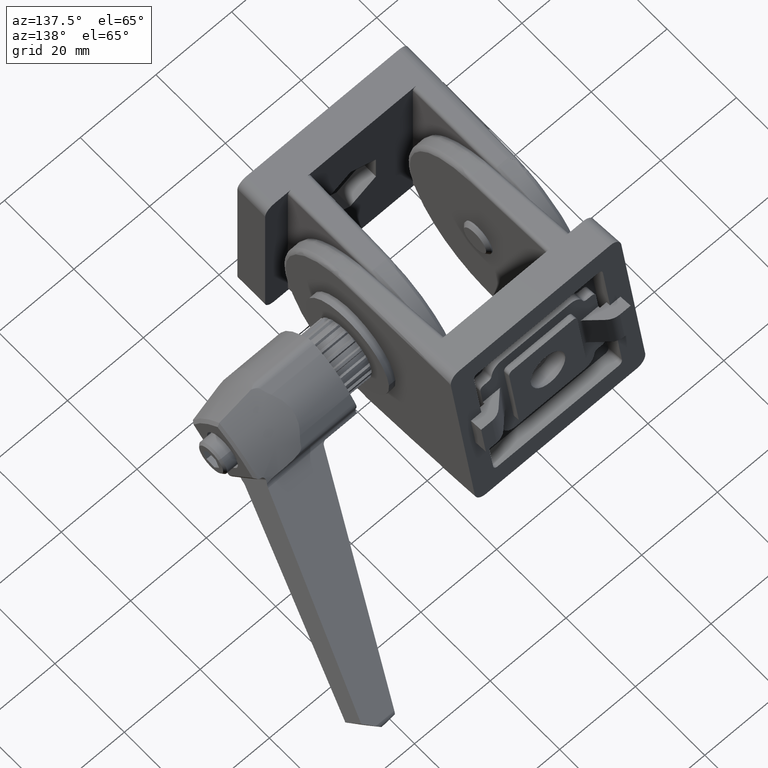
[diagram: clean part render]
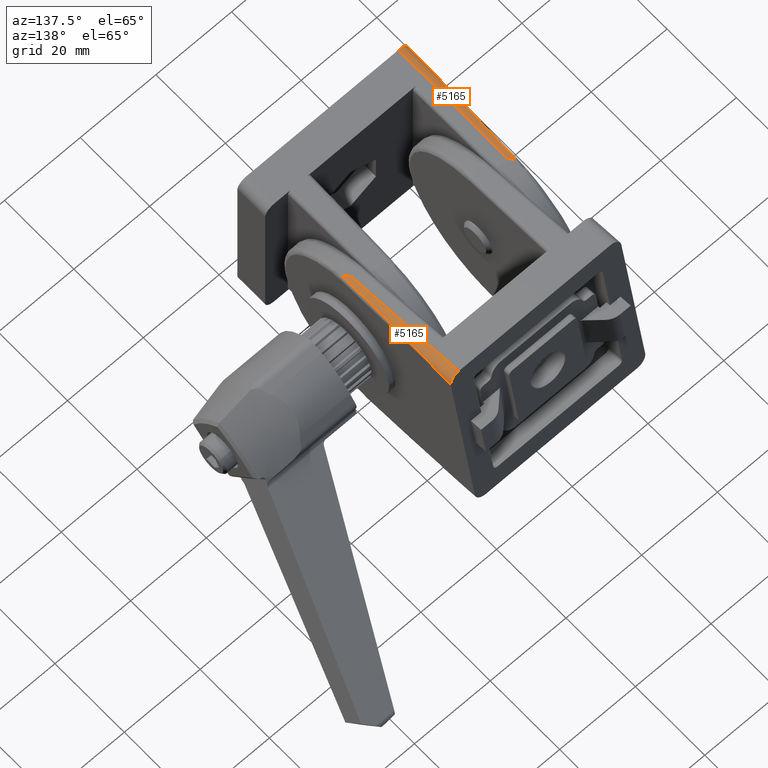
[diagram: same view with one multi-face feature highlighted, each face labeled with its STEP entity id]
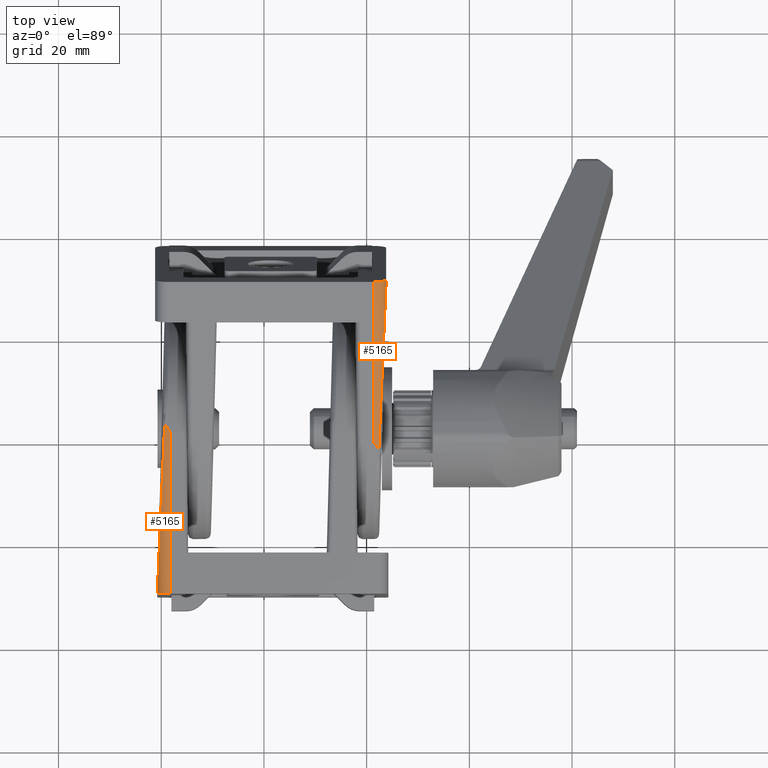
[diagram: same view with one multi-face feature highlighted, each face labeled with its STEP entity id]
A machine part, auxiliary view. The highlighted faces form ONE feature: a constant-radius fillet chain: 2 tangent blend faces with common blend radius 2.5 mm. The faces share edges in the B-rep.
A second angle (top view) of the same feature is appended — it is thin or edge-on in the first view.
Their STEP definitions:
[1] entity #5165 (Cylinder):
#104=LINE('',#7753,#535);
#535=VECTOR('',#6065,31.5);
#1188=CYLINDRICAL_SURFACE('',#5505,2.5);
#1326=FACE_OUTER_BOUND('',#1633,.T.);
#1633=EDGE_LOOP('',(#3759,#3760,#3761,#3762));
#1992=CIRCLE('',#5457,2.5);
#2219=B_SPLINE_CURVE_WITH_KNOTS('',3,(#8193,#8194,#8195,#8196),
 .UNSPECIFIED.,.F.,.F.,(4,4),(-2.9893868372348E-5,0.00184411947717255),
 .UNSPECIFIED.);
#2220=B_SPLINE_CURVE_WITH_KNOTS('',3,(#8197,#8198,#8199,#8200,#8201,#8202,
#8203,#8204,#8205,#8206,#8207,#8208,#8209),.UNSPECIFIED.,.F.,.F.,(4,3,3,
3,4),(5.14944531961086,5.43297500468938,5.70603487185707,5.97890863064195,
6.26180601664056),.UNSPECIFIED.);
#2277=VERTEX_POINT('',#7717);
#2278=VERTEX_POINT('',#7719);
#2293=VERTEX_POINT('',#7751);
#2348=VERTEX_POINT('',#8192);
#2805=EDGE_CURVE('',#2277,#2278,#1992,.T.);
#2822=EDGE_CURVE('',#2293,#2277,#104,.T.);
#2916=EDGE_CURVE('',#2293,#2348,#2219,.T.);
#2917=EDGE_CURVE('',#2348,#2278,#2220,.T.);
#3759=ORIENTED_EDGE('',*,*,#2916,.T.);
#3760=ORIENTED_EDGE('',*,*,#2917,.T.);
#3761=ORIENTED_EDGE('',*,*,#2805,.F.);
#3762=ORIENTED_EDGE('',*,*,#2822,.F.);
#5165=ADVANCED_FACE('',(#1326),#1188,.T.);
#5457=AXIS2_PLACEMENT_3D('',#7720,#6040,#6041);
#5505=AXIS2_PLACEMENT_3D('',#8191,#6211,#6212);
#6040=DIRECTION('center_axis',(0.,-1.,0.));
#6041=DIRECTION('ref_axis',(0.,0.,-1.));
#6065=DIRECTION('',(0.,-1.,0.));
#6211=DIRECTION('center_axis',(0.,-1.,0.));
#6212=DIRECTION('ref_axis',(0.,0.,-1.));
#7717=CARTESIAN_POINT('',(-20.,0.,45.));
#7719=CARTESIAN_POINT('',(-22.4994286791819,0.,42.5534441548076));
#7720=CARTESIAN_POINT('Origin',(-20.,0.,42.5));
#7751=CARTESIAN_POINT('',(-20.,31.5,45.));
#7753=CARTESIAN_POINT('',(-20.,54.,45.));
#8191=CARTESIAN_POINT('Origin',(-20.,54.,42.5));
#8192=CARTESIAN_POINT('',(-21.0581858535145,33.0233057848073,44.7650039071541));
#8193=CARTESIAN_POINT('Ctrl Pts',(-20.,31.5,45.));
#8194=CARTESIAN_POINT('Ctrl Pts',(-20.3620073941306,32.0090837082267,45.));
#8195=CARTESIAN_POINT('Ctrl Pts',(-20.7249984932004,32.5194778596129,44.9206655156202));
#8196=CARTESIAN_POINT('Ctrl Pts',(-21.0581858538006,33.0233057845211,44.7650039070201));
#8197=CARTESIAN_POINT('Ctrl Pts',(-21.0581858538006,33.0233057845211,44.7650039070201));
#8198=CARTESIAN_POINT('Ctrl Pts',(-21.261384210765,28.3674064740653,44.6700717851863));
#8199=CARTESIAN_POINT('Ctrl Pts',(-21.4598344770006,23.8203005252795,44.5433792954548));
#8200=CARTESIAN_POINT('Ctrl Pts',(-21.6393201025029,19.7077328229173,44.3874929407894));
#8201=CARTESIAN_POINT('Ctrl Pts',(-21.812177914709,15.7470287075296,44.2373629560353));
#8202=CARTESIAN_POINT('Ctrl Pts',(-21.9671841706915,12.1953586490122,44.0603068535948));
#8203=CARTESIAN_POINT('Ctrl Pts',(-22.0944938352079,9.27830268422995,43.8649525904866));
#8204=CARTESIAN_POINT('Ctrl Pts',(-22.2217167297569,6.36323488626912,43.669731474246));
#8205=CARTESIAN_POINT('Ctrl Pts',(-22.3211413708533,4.08511057033327,43.4564494963891));
#8206=CARTESIAN_POINT('Ctrl Pts',(-22.3887328463578,2.53638198369202,43.2375333136416));
#8207=CARTESIAN_POINT('Ctrl Pts',(-22.4588071980331,0.930763067702619,43.0105755580559));
#8208=CARTESIAN_POINT('Ctrl Pts',(-22.4946447818716,0.10961380080565,42.777173207658));
#8209=CARTESIAN_POINT('Ctrl Pts',(-22.4994286791819,-5.55111512312578E-16,
42.5534441548076));
[2] entity #5165 (Cylinder):
#104=LINE('',#7753,#535);
#535=VECTOR('',#6065,31.5);
#1188=CYLINDRICAL_SURFACE('',#5505,2.5);
#1326=FACE_OUTER_BOUND('',#1633,.T.);
#1633=EDGE_LOOP('',(#3759,#3760,#3761,#3762));
#1992=CIRCLE('',#5457,2.5);
#2219=B_SPLINE_CURVE_WITH_KNOTS('',3,(#8193,#8194,#8195,#8196),
 .UNSPECIFIED.,.F.,.F.,(4,4),(-2.9893868372348E-5,0.00184411947717255),
 .UNSPECIFIED.);
#2220=B_SPLINE_CURVE_WITH_KNOTS('',3,(#8197,#8198,#8199,#8200,#8201,#8202,
#8203,#8204,#8205,#8206,#8207,#8208,#8209),.UNSPECIFIED.,.F.,.F.,(4,3,3,
3,4),(5.14944531961086,5.43297500468938,5.70603487185707,5.97890863064195,
6.26180601664056),.UNSPECIFIED.);
#2277=VERTEX_POINT('',#7717);
#2278=VERTEX_POINT('',#7719);
#2293=VERTEX_POINT('',#7751);
#2348=VERTEX_POINT('',#8192);
#2805=EDGE_CURVE('',#2277,#2278,#1992,.T.);
#2822=EDGE_CURVE('',#2293,#2277,#104,.T.);
#2916=EDGE_CURVE('',#2293,#2348,#2219,.T.);
#2917=EDGE_CURVE('',#2348,#2278,#2220,.T.);
#3759=ORIENTED_EDGE('',*,*,#2916,.T.);
#3760=ORIENTED_EDGE('',*,*,#2917,.T.);
#3761=ORIENTED_EDGE('',*,*,#2805,.F.);
#3762=ORIENTED_EDGE('',*,*,#2822,.F.);
#5165=ADVANCED_FACE('',(#1326),#1188,.T.);
#5457=AXIS2_PLACEMENT_3D('',#7720,#6040,#6041);
#5505=AXIS2_PLACEMENT_3D('',#8191,#6211,#6212);
#6040=DIRECTION('center_axis',(0.,-1.,0.));
#6041=DIRECTION('ref_axis',(0.,0.,-1.));
#6065=DIRECTION('',(0.,-1.,0.));
#6211=DIRECTION('center_axis',(0.,-1.,0.));
#6212=DIRECTION('ref_axis',(0.,0.,-1.));
#7717=CARTESIAN_POINT('',(-20.,0.,45.));
#7719=CARTESIAN_POINT('',(-22.4994286791819,0.,42.5534441548076));
#7720=CARTESIAN_POINT('Origin',(-20.,0.,42.5));
#7751=CARTESIAN_POINT('',(-20.,31.5,45.));
#7753=CARTESIAN_POINT('',(-20.,54.,45.));
#8191=CARTESIAN_POINT('Origin',(-20.,54.,42.5));
#8192=CARTESIAN_POINT('',(-21.0581858535145,33.0233057848073,44.7650039071541));
#8193=CARTESIAN_POINT('Ctrl Pts',(-20.,31.5,45.));
#8194=CARTESIAN_POINT('Ctrl Pts',(-20.3620073941306,32.0090837082267,45.));
#8195=CARTESIAN_POINT('Ctrl Pts',(-20.7249984932004,32.5194778596129,44.9206655156202));
#8196=CARTESIAN_POINT('Ctrl Pts',(-21.0581858538006,33.0233057845211,44.7650039070201));
#8197=CARTESIAN_POINT('Ctrl Pts',(-21.0581858538006,33.0233057845211,44.7650039070201));
#8198=CARTESIAN_POINT('Ctrl Pts',(-21.261384210765,28.3674064740653,44.6700717851863));
#8199=CARTESIAN_POINT('Ctrl Pts',(-21.4598344770006,23.8203005252795,44.5433792954548));
#8200=CARTESIAN_POINT('Ctrl Pts',(-21.6393201025029,19.7077328229173,44.3874929407894));
#8201=CARTESIAN_POINT('Ctrl Pts',(-21.812177914709,15.7470287075296,44.2373629560353));
#8202=CARTESIAN_POINT('Ctrl Pts',(-21.9671841706915,12.1953586490122,44.0603068535948));
#8203=CARTESIAN_POINT('Ctrl Pts',(-22.0944938352079,9.27830268422995,43.8649525904866));
#8204=CARTESIAN_POINT('Ctrl Pts',(-22.2217167297569,6.36323488626912,43.669731474246));
#8205=CARTESIAN_POINT('Ctrl Pts',(-22.3211413708533,4.08511057033327,43.4564494963891));
#8206=CARTESIAN_POINT('Ctrl Pts',(-22.3887328463578,2.53638198369202,43.2375333136416));
#8207=CARTESIAN_POINT('Ctrl Pts',(-22.4588071980331,0.930763067702619,43.0105755580559));
#8208=CARTESIAN_POINT('Ctrl Pts',(-22.4946447818716,0.10961380080565,42.777173207658));
#8209=CARTESIAN_POINT('Ctrl Pts',(-22.4994286791819,-5.55111512312578E-16,
42.5534441548076));